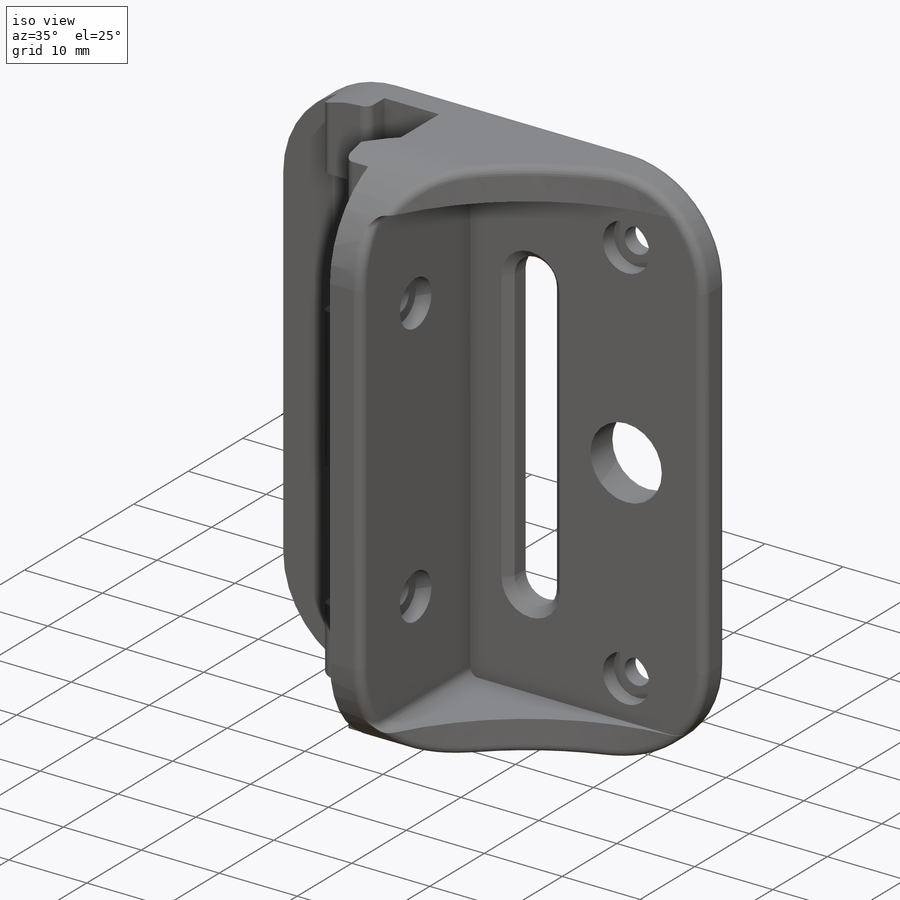
[diagram: iso view]
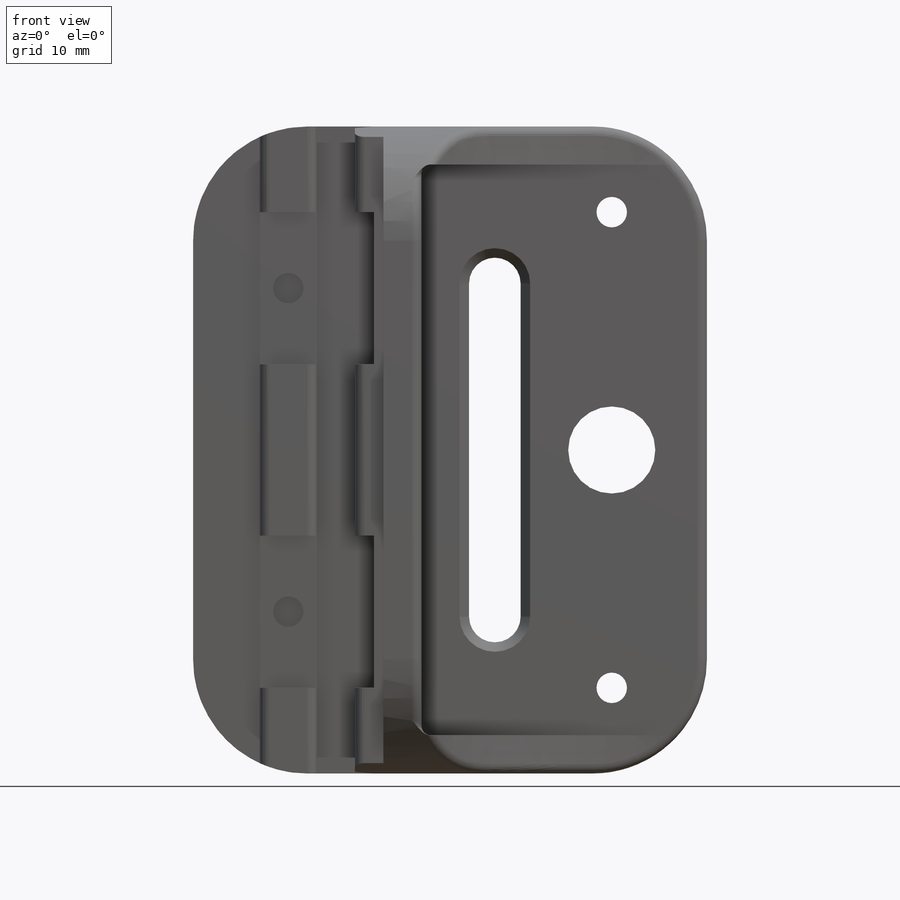
[diagram: front view]
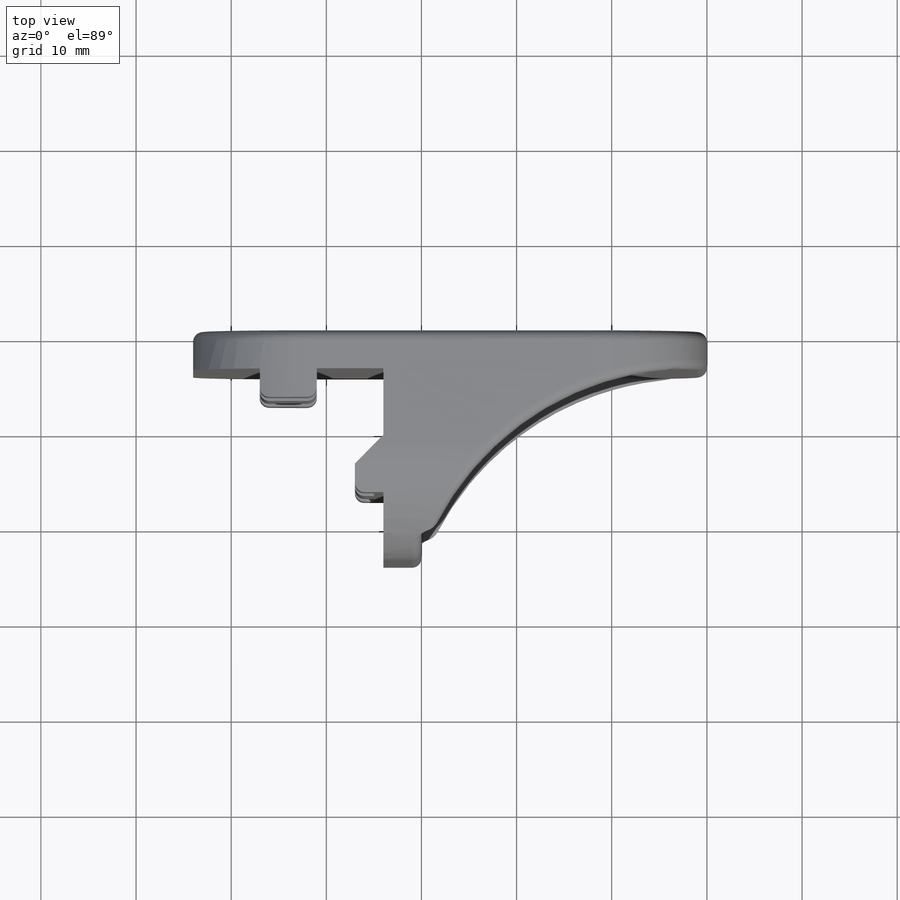
[diagram: top view]
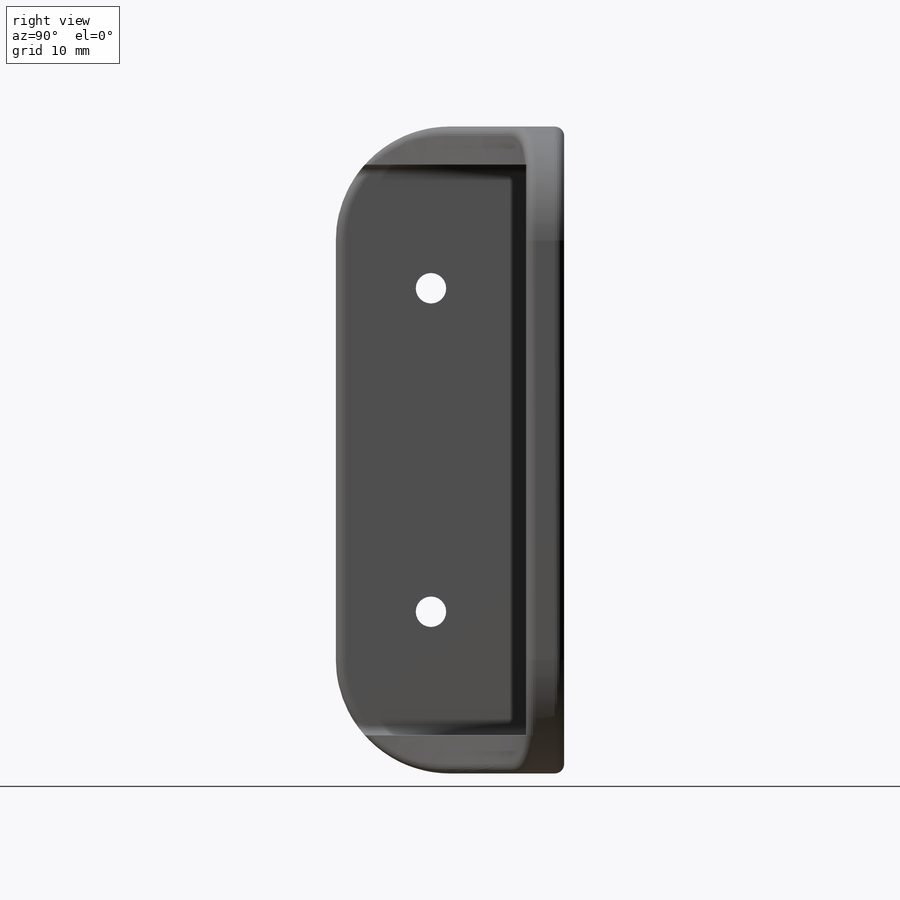
[diagram: right view]
SOLIDWORKS PART (.sldprt)
format: sldprt  version: not decoded by parser v0  size: 1,090,048 bytes
history: native  units: mm
features: sketch x15, cut_extrude x10, extrude x5, fillet x5, chamfer x2, material x1 (+13 scaffold rows collapsed)
feature tree (51):
  scaffold x13  (default folders/planes/origin — collapsed)
  material  "Material <not specified>"
  sketch  "Sketch1"  dims[D1=4.0mm D2=4.0mm D3=20.0mm D4=20.0mm]
  extrude  "Boss-Extrude1"  Depth=68mm
  sketch  "Sketch2"  dims[D1=6.0mm]
  extrude  "Boss-Extrude2"  Depth=3mm
  sketch  "Sketch3"  dims[D1=6.0mm]
  extrude  "Boss-Extrude3"  Depth=3mm
  sketch  "Sketch4"  dims[D1=4.0mm]
  extrude  "Boss-Extrude4"  Depth=30mm
  sketch  "Sketch5"  dims[c1.D1=9.15mm c1.D2=~12.854474mm c1.D3=3.2mm c2.D2=50.0mm c2.D4=10.0mm c2.D5=5.0mm c2.D6=9.5mm c2.D7=4.0mm]
  cut_extrude  "Cut-Extrude1"  [1 undecoded]
  sketch  "Sketch15"  dims[D1=5.0mm D2=35.0mm]
  cut_extrude  "Cut-Extrude10"  [1 undecoded]
  sketch  "Sketch6"  dims[D1=3.2mm]
  cut_extrude  "Cut-Extrude2"  [1 undecoded]
  sketch  "Sketch7"  dims[D1=16.0mm]
  cut_extrude  "Cut-Extrude3"  Depth=2mm
  sketch  "Sketch8"  dims[D1=3.2mm]
  cut_extrude  "Cut-Extrude4"  [1 undecoded]
  chamfer  "Chamfer3"  Distance=3mm Angle=45deg
  sketch  "Sketch9"  dims[D1=16.0mm]
  cut_extrude  "Cut-Extrude5"  Depth=2mm
  sketch  "Sketch10"  dims[D1=5.8mm]
  cut_extrude  "Cut-Extrude6"  Depth=2mm
  sketch  "Sketch11"  dims[D1=6.5mm]
  cut_extrude  "Cut-Extrude7"  Depth=2mm
  sketch  "Sketch13"  dims[D1=6.0mm]
  cut_extrude  "Cut-Extrude8"  Depth=2mm
  fillet  "Fillet4"  Radius=30mm
  sketch  "Sketch14"  dims[D1=4.0mm]
  cut_extrude  "Cut-Extrude9"  [1 undecoded]
  fillet  "Fillet5"  Radius=12mm
  chamfer  "Chamfer4"  Distance=1mm Angle=45deg
  fillet  "Fillet7"  Radius=1mm
  fillet  "Fillet9"  Radius=1mm
  sketch  "Sketch12"
  extrude  "Boss-Extrude5"  Depth=0.6mm
  fillet  "Fillet10"  Radius=1mm
decode coverage: 31 of 37 modeling features carry decoded parameters
note: ~ marks probable driven/reference dimensions
note: 5 parameter values undecoded
summary: no parameter record found for 5 features
note: suppression state not decoded; provenance and decode notes live in map.json
